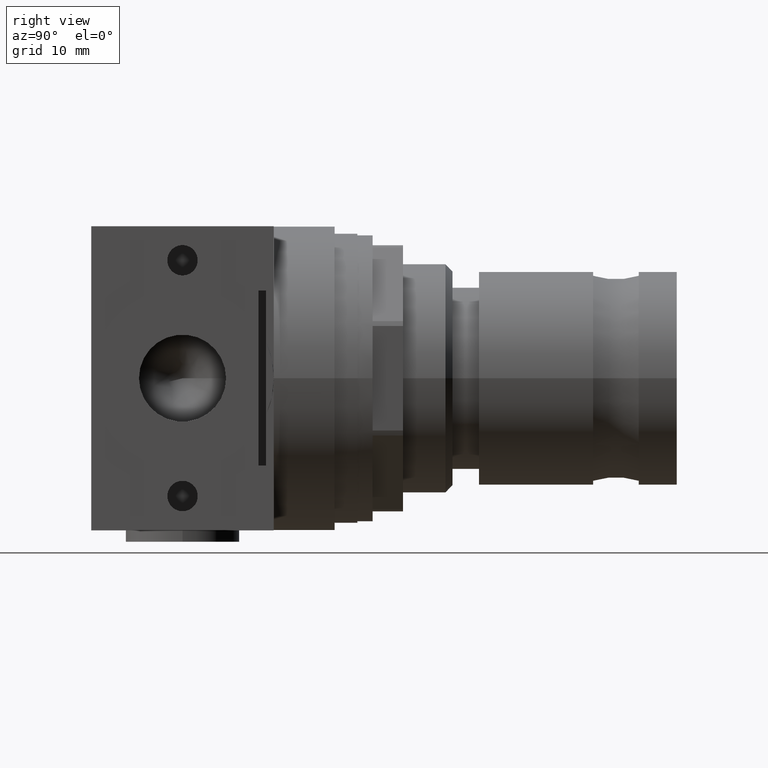
[diagram: clean part render]
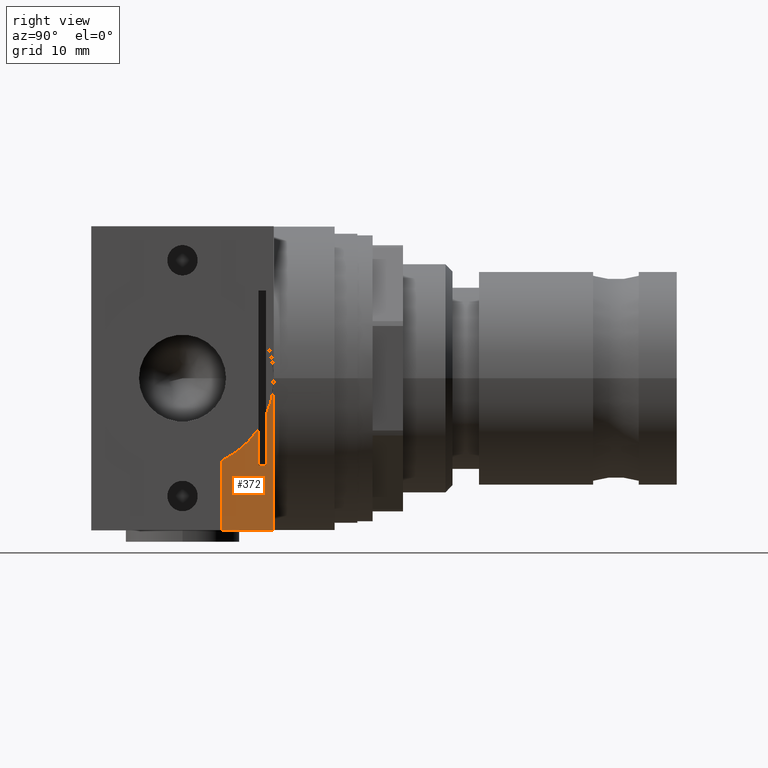
[diagram: same view with one face highlighted and labeled with its STEP entity id]
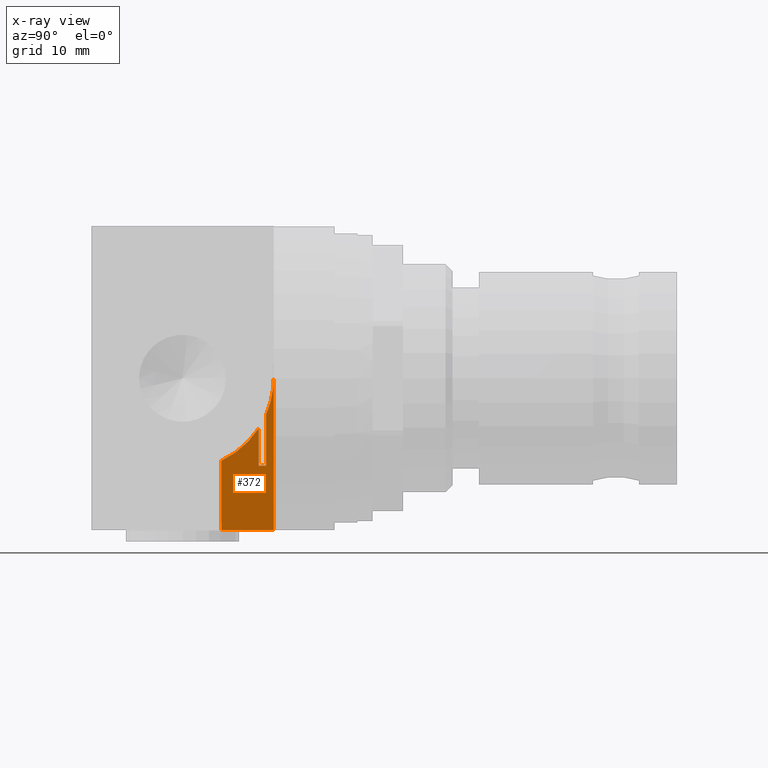
[diagram: x-ray of the same camera — body ghosted, the highlighted face saturated]
A machine part, right view. The second image highlights one B-rep face of the part: STEP entity #372.
The next image is the same camera in x-ray: the body ghosted, the highlighted face saturated — about 0% of this face is hidden behind the body in this view.
In plain terms, the highlighted planar face has unit normal (1, 0, 0).
Its self-contained STEP definition (entity closure, byte-faithful):
#372 = ADVANCED_FACE( '', ( #780 ), #781, .T. );
#780 = FACE_OUTER_BOUND( '', #1225, .T. );
#781 = PLANE( '', #1226 );
#1225 = EDGE_LOOP( '', ( #2024, #2025, #2026, #2027, #2028, #2029, #2030, #2031 ) );
#1226 = AXIS2_PLACEMENT_3D( '', #2032, #2033, #2034 );
#2024 = ORIENTED_EDGE( '', *, *, #2568, .F. );
#2025 = ORIENTED_EDGE( '', *, *, #2728, .T. );
#2026 = ORIENTED_EDGE( '', *, *, #2729, .T. );
#2027 = ORIENTED_EDGE( '', *, *, #2730, .T. );
#2028 = ORIENTED_EDGE( '', *, *, #2731, .T. );
#2029 = ORIENTED_EDGE( '', *, *, #2684, .T. );
#2030 = ORIENTED_EDGE( '', *, *, #2732, .F. );
#2031 = ORIENTED_EDGE( '', *, *, #2440, .F. );
#2032 = CARTESIAN_POINT( '', ( 19.9500000000000, 0.000000000000000, 0.000000000000000 ) );
#2033 = DIRECTION( '', ( 1.00000000000000, 0.000000000000000, 0.000000000000000 ) );
#2034 = DIRECTION( '', ( 0.000000000000000, 0.000000000000000, -1.00000000000000 ) );
#2440 = EDGE_CURVE( '', #2847, #2848, #2849, .T. );
#2568 = EDGE_CURVE( '', #3067, #2847, #3069, .T. );
#2684 = EDGE_CURVE( '', #3098, #3239, #3241, .F. );
#2728 = EDGE_CURVE( '', #3067, #3297, #3298, .F. );
#2729 = EDGE_CURVE( '', #3297, #3299, #3300, .T. );
#2730 = EDGE_CURVE( '', #3299, #3301, #3302, .T. );
#2731 = EDGE_CURVE( '', #3301, #3098, #3303, .T. );
#2732 = EDGE_CURVE( '', #2848, #3239, #3304, .T. );
#2847 = VERTEX_POINT( '', #3428 );
#2848 = VERTEX_POINT( '', #3429 );
#2849 = LINE( '', #3430, #3431 );
#3067 = VERTEX_POINT( '', #3709 );
#3069 = LINE( '', #3712, #3713 );
#3098 = VERTEX_POINT( '', #3749 );
#3239 = VERTEX_POINT( '', #3939 );
#3241 = CIRCLE( '', #3942, 12.0000000000000 );
#3297 = VERTEX_POINT( '', #4022 );
#3298 = CIRCLE( '', #4023, 12.0000000000000 );
#3299 = VERTEX_POINT( '', #4024 );
#3300 = LINE( '', #4025, #4026 );
#3301 = VERTEX_POINT( '', #4027 );
#3302 = LINE( '', #4028, #4029 );
#3303 = LINE( '', #4030, #4031 );
#3304 = LINE( '', #4032, #4033 );
#3428 = CARTESIAN_POINT( '', ( 19.9500000000000, 10.0000000000000, -11.5000000000000 ) );
#3429 = CARTESIAN_POINT( '', ( 19.9500000000000, 11.0000000000000, -11.5000000000000 ) );
#3430 = CARTESIAN_POINT( '', ( 19.9500000000000, 0.000000000000000, -11.5000000000000 ) );
#3431 = VECTOR( '', #4167, 1000.00000000000 );
#3709 = CARTESIAN_POINT( '', ( 19.9500000000000, 10.0000000000000, -6.63324958071079 ) );
#3712 = CARTESIAN_POINT( '', ( 19.9500000000000, 10.0000000000000, 0.000000000000000 ) );
#3713 = VECTOR( '', #4352, 1000.00000000000 );
#3749 = CARTESIAN_POINT( '', ( 19.9500000000000, 12.0000000000000, -1.84242419865797E-015 ) );
#3939 = CARTESIAN_POINT( '', ( 19.9500000000000, 11.0000000000000, -4.79583152331271 ) );
#3942 = AXIS2_PLACEMENT_3D( '', #4473, #4474, #4475 );
#4022 = CARTESIAN_POINT( '', ( 19.9500000000000, 5.10000000000000, -10.8623201941390 ) );
#4023 = AXIS2_PLACEMENT_3D( '', #4512, #4513, #4514 );
#4024 = CARTESIAN_POINT( '', ( 19.9500000000000, 5.10000000000000, -20.0000000000000 ) );
#4025 = CARTESIAN_POINT( '', ( 19.9500000000000, 5.10000000000000, 0.000000000000000 ) );
#4026 = VECTOR( '', #4515, 1000.00000000000 );
#4027 = CARTESIAN_POINT( '', ( 19.9500000000000, 12.0000000000000, -20.0000000000000 ) );
#4028 = CARTESIAN_POINT( '', ( 19.9500000000000, -12.0000000000000, -20.0000000000000 ) );
#4029 = VECTOR( '', #4516, 1000.00000000000 );
#4030 = CARTESIAN_POINT( '', ( 19.9500000000000, 12.0000000000000, -20.0000000000000 ) );
#4031 = VECTOR( '', #4517, 1000.00000000000 );
#4032 = CARTESIAN_POINT( '', ( 19.9500000000000, 11.0000000000000, 0.000000000000000 ) );
#4033 = VECTOR( '', #4518, 1000.00000000000 );
#4167 = DIRECTION( '', ( -0.000000000000000, 1.00000000000000, 0.000000000000000 ) );
#4352 = DIRECTION( '', ( 0.000000000000000, 0.000000000000000, -1.00000000000000 ) );
#4473 = CARTESIAN_POINT( '', ( 19.9500000000000, -8.67361737988404E-015, -1.73472347597681E-015 ) );
#4474 = DIRECTION( '', ( 1.00000000000000, 0.000000000000000, 0.000000000000000 ) );
#4475 = DIRECTION( '', ( 0.000000000000000, 0.000000000000000, -1.00000000000000 ) );
#4512 = CARTESIAN_POINT( '', ( 19.9500000000000, -8.67361737988404E-015, -1.73472347597681E-015 ) );
#4513 = DIRECTION( '', ( 1.00000000000000, 0.000000000000000, 0.000000000000000 ) );
#4514 = DIRECTION( '', ( 0.000000000000000, 0.000000000000000, -1.00000000000000 ) );
#4515 = DIRECTION( '', ( 0.000000000000000, 0.000000000000000, -1.00000000000000 ) );
#4516 = DIRECTION( '', ( 0.000000000000000, 1.00000000000000, 0.000000000000000 ) );
#4517 = DIRECTION( '', ( 0.000000000000000, 0.000000000000000, 1.00000000000000 ) );
#4518 = DIRECTION( '', ( 0.000000000000000, 0.000000000000000, 1.00000000000000 ) );